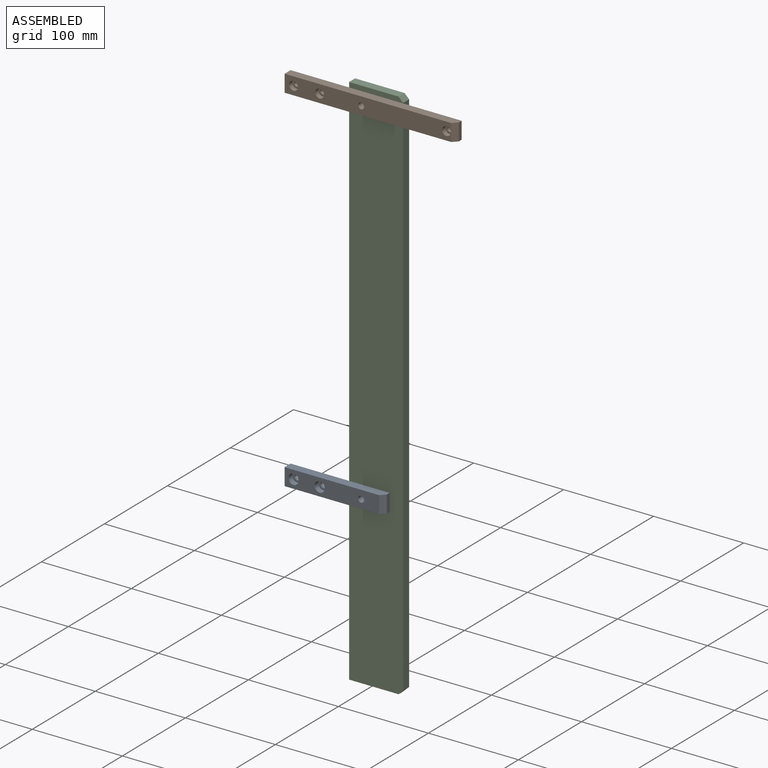
[diagram: assembled view]
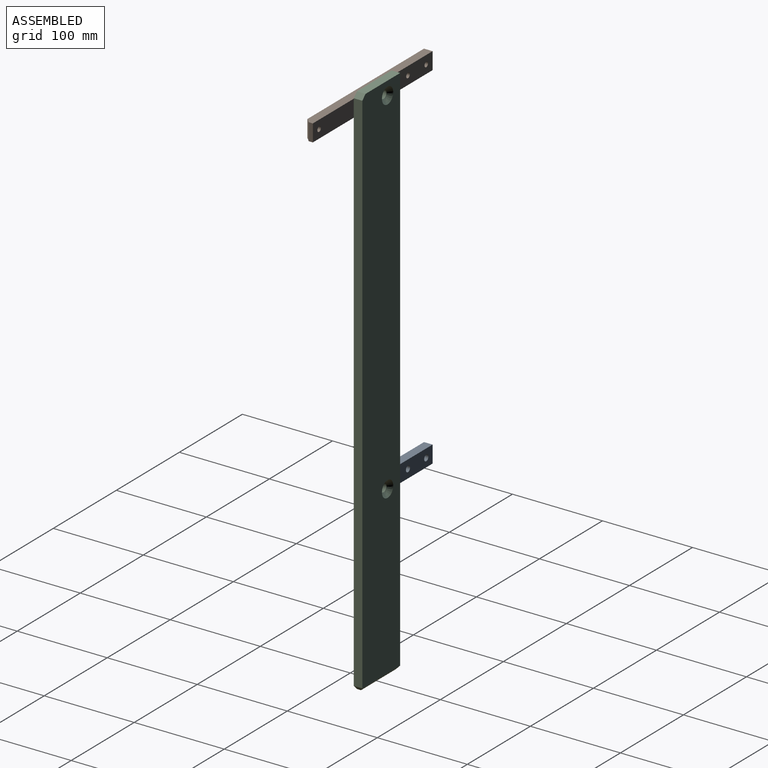
[diagram: assembled view, second angle]
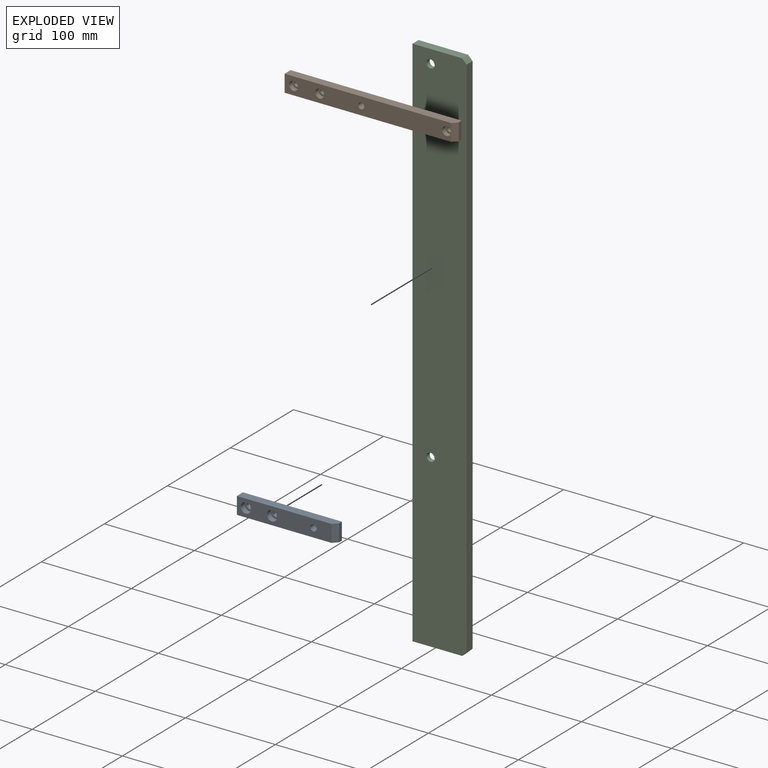
[diagram: exploded view]
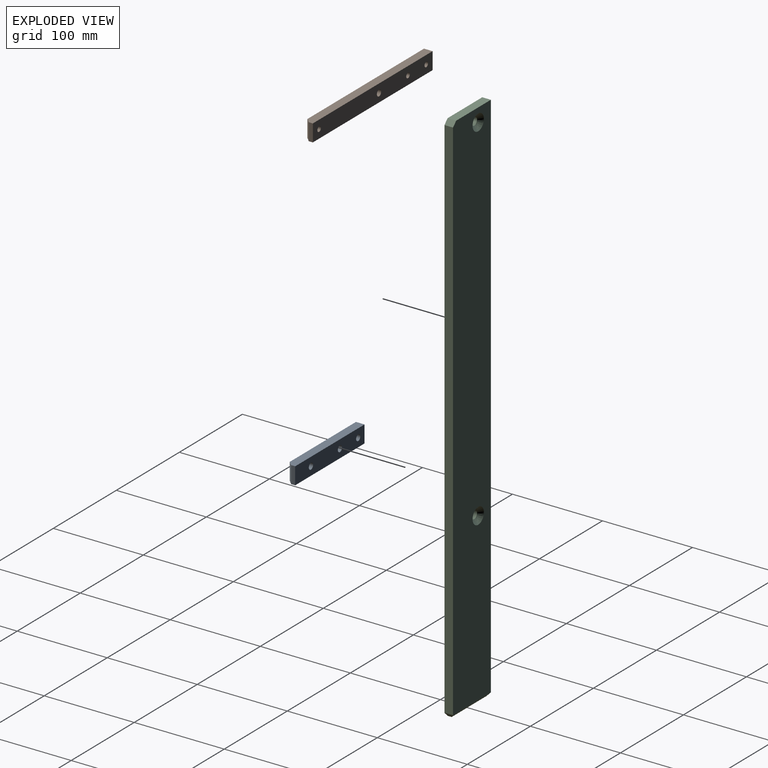
[diagram: exploded view, second angle]
ASSEMBLY  parts=3 mates=2
PART A: 14 faces, bbox 110x9.5x19.1 mm
  f0: plane 110x9.52mm, normal (0,0,1), area 1034.7mm2, adj f1,f3,f4,f5,f13
  f1: plane 19.05x9.52mm, normal (-1,0,0), area 181.4mm2, adj f0,f2,f4,f5
  f2: plane 110x9.52mm, normal (0,0,-1), area 1034.7mm2, adj f1,f3,f4,f5,f13
  f3: plane 19.05x4.52mm, normal (1,0,0), area 86.1mm2, adj f0,f2,f5,f13
  f4: plane 105x19.05mm, normal (0,-1,0), area 1765.1mm2, adj f0,f1,f2,f6,f9,f12,f13
  f5: plane 110x19.05mm, normal (0,1,0), area 1990.8mm2, adj f0,f1,f2,f3,f6,f7,f10
  f6: cylinder r=3.4mm len=9.52mm, axis (0,-1,0), area 203.4mm2, adj f4,f5
  f7: cylinder r=3.3mm len=6.6mm, axis (0,-1,0), area 73mm2, adj f5,f8
  f8: plane 11.25x11.25mm, normal (0,-1,0), area 65.2mm2, adj f7,f9
  f9: cylinder r=5.62mm len=11.25mm, axis (0,-1,0), area 212.1mm2, adj f4,f8
  f10: cylinder r=3.3mm len=6.6mm, axis (0,-1,0), area 73mm2, adj f5,f11
  f11: plane 11.25x11.25mm, normal (0,-1,0), area 65.2mm2, adj f10,f12
  f12: cylinder r=5.62mm len=11.25mm, axis (0,-1,0), area 212.1mm2, adj f4,f11
  f13: plane 19.05x5mm, normal (0.71,-0.71,0), area 134.7mm2, adj f0,f2,f3,f4
PART B: 17 faces, bbox 190x9.5x19.1 mm
  f0: plane 190x9.52mm, normal (0,0,1), area 1796.3mm2, adj f1,f3,f4,f5,f16
  f1: plane 19.05x9.52mm, normal (-1,0,0), area 181.4mm2, adj f0,f2,f4,f5
  f2: plane 190x9.52mm, normal (0,0,-1), area 1796.3mm2, adj f1,f3,f4,f5,f16
  f3: plane 19.05x4.52mm, normal (1,0,0), area 86.1mm2, adj f0,f2,f5,f16
  f4: plane 185x19.05mm, normal (0,-1,0), area 3263.9mm2, adj f0,f1,f2,f8,f11,f14,f15,f16
  f5: plane 190x19.05mm, normal (0,1,0), area 3511.9mm2, adj f0,f1,f2,f3,f6,f9,f12,f15
  f6: cylinder r=2.75mm len=5.5mm, axis (0,-1,0), area 78.1mm2, adj f5,f7
  f7: plane 9.75x9.75mm, normal (0,-1,0), area 50.9mm2, adj f6,f8
  f8: cylinder r=4.88mm len=9.75mm, axis (0,-1,0), area 153.2mm2, adj f4,f7
  f9: cylinder r=2.75mm len=5.5mm, axis (0,-1,0), area 78.1mm2, adj f5,f10
  f10: plane 9.75x9.75mm, normal (0,-1,0), area 50.9mm2, adj f9,f11
  f11: cylinder r=4.88mm len=9.75mm, axis (0,-1,0), area 153.2mm2, adj f4,f10
  f12: cylinder r=2.75mm len=5.5mm, axis (0,-1,0), area 78.1mm2, adj f5,f13
  f13: plane 9.75x9.75mm, normal (0,-1,0), area 50.9mm2, adj f12,f14
  f14: cylinder r=4.88mm len=9.75mm, axis (0,-1,0), area 153.2mm2, adj f4,f13
  f15: cylinder r=3.4mm len=9.52mm, axis (0,-1,0), area 203.4mm2, adj f4,f5
  f16: plane 19.05x5mm, normal (0.71,-0.71,0), area 134.7mm2, adj f0,f2,f3,f4
PART C: 13 faces, bbox 600x9.5x60 mm
  f0: plane 55x9.52mm, normal (-1,0,0), area 523.6mm2, adj f1,f4,f5,f12
  f1: plane 600x9.52mm, normal (0,0,-1), area 5699.5mm2, adj f0,f2,f4,f5,f11
  f2: plane 55x4.52mm, normal (1,0,0), area 248.6mm2, adj f1,f4,f10,f11
  f3: plane 590x9.52mm, normal (0,0,1), area 5616.8mm2, adj f4,f5,f10,f12
  f4: plane 600x60mm, normal (0,-1,0), area 35847.8mm2, adj f0,f1,f2,f3,f6,f8,f10,f12
  f5: plane 595x60mm, normal (0,1,0), area 35183.1mm2, adj f0,f1,f3,f7,f9,f11,f12
  f6: cylinder r=4.5mm len=9mm, axis (0,1,0), area 143.1mm2, adj f4,f7
  f7: cone r=4.5mm half-angle=45deg, axis (0,1,0), area 266.7mm2, adj f5,f6
  f8: cylinder r=4.5mm len=9mm, axis (0,1,0), area 143.1mm2, adj f4,f9
  f9: cone r=4.5mm half-angle=45deg, axis (0,1,0), area 266.7mm2, adj f5,f8
  f10: plane 9.52x5mm, normal (0.71,0,0.71), area 49.6mm2, adj f2,f3,f4,f11
  f11: plane 60x5mm, normal (0.71,0.71,0), area 406.6mm2, adj f1,f2,f5,f10
  f12: plane 9.52x5mm, normal (-0.71,0,0.71), area 67.3mm2, adj f0,f3,f4,f5
PLACE A t=(121.4,36.38,-544.5)mm
PLACE B t=(121.4,36.38,-149.5)mm
PLACE C rot(axis=(0,1,0),90deg) t=(186.4,45.9,-124.97)mm
MATE fastened A.f6 <-> C.f8  axis (0,1,0) through (206.4,36.38,-534.97)mm
MATE fastened C.f6 <-> B.f15  axis (0,-1,0) through (206.4,36.38,-139.97)mm
